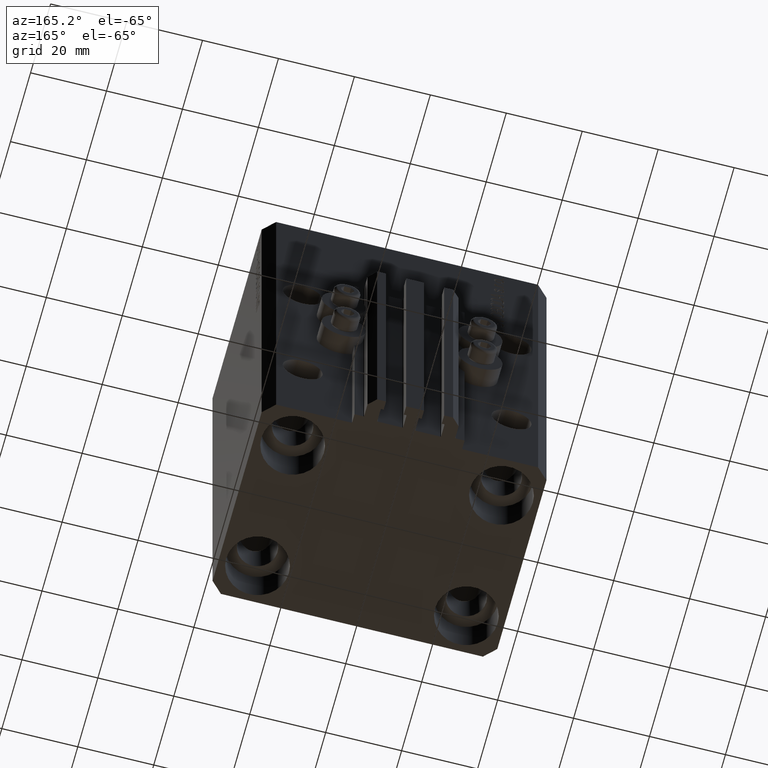
[diagram: clean part render]
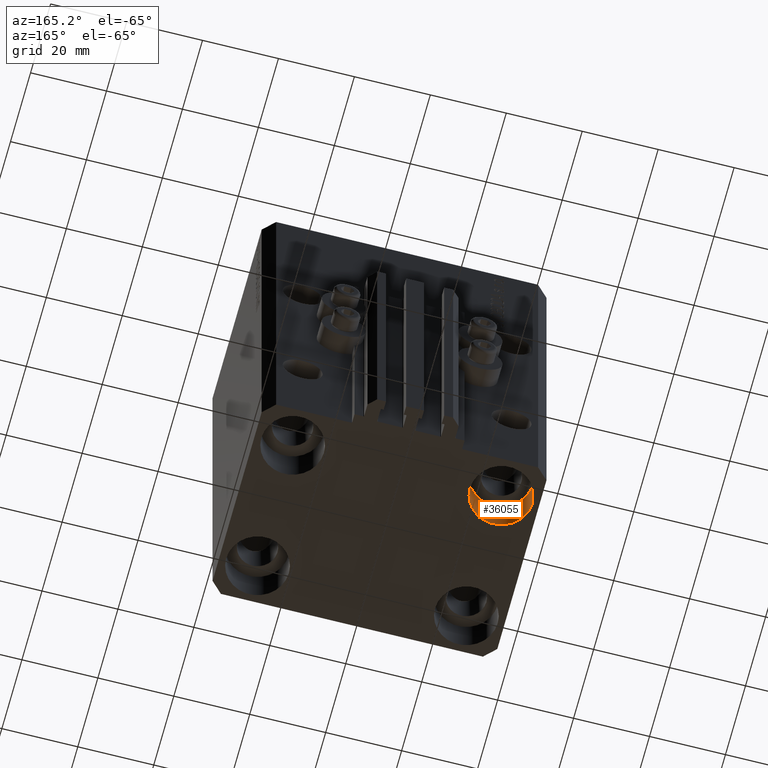
[diagram: same view with one face highlighted and labeled with its STEP entity id]
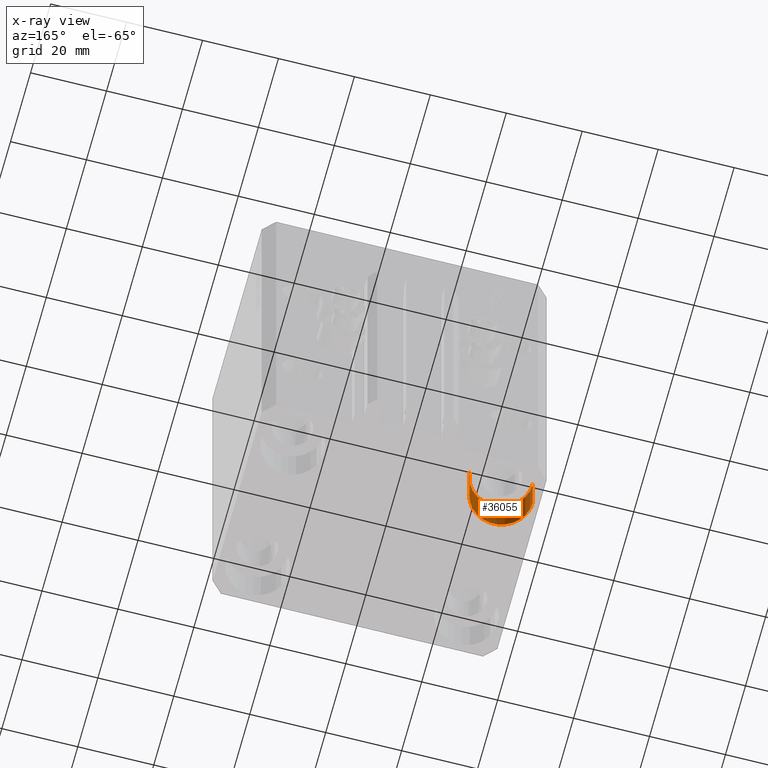
[diagram: x-ray of the same camera — body ghosted, the highlighted face saturated]
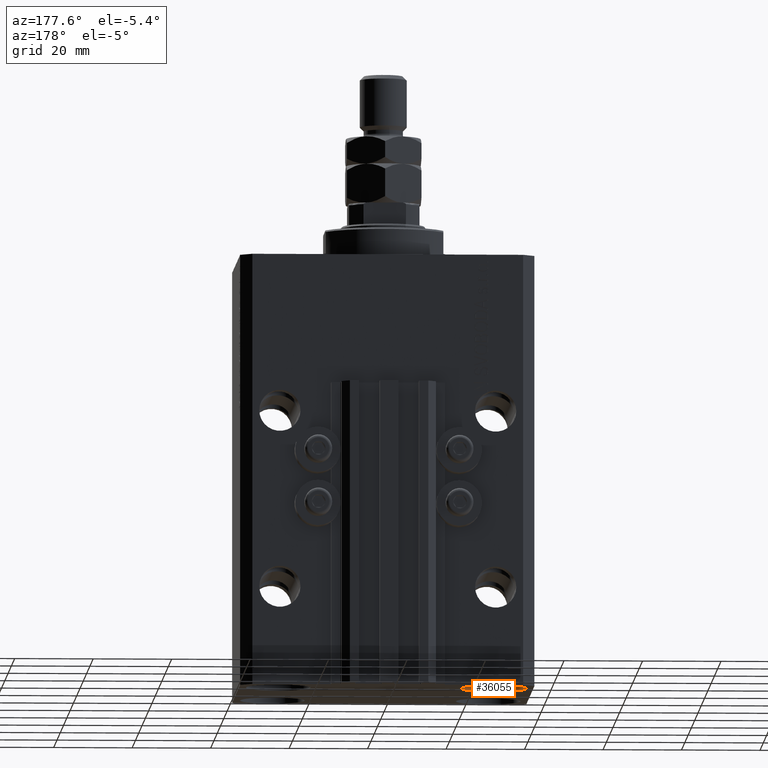
[diagram: same view with one face highlighted and labeled with its STEP entity id]
A machine part, auxiliary view. The second image highlights one B-rep face of the part: STEP entity #36055.
The next image is the same camera in x-ray: the body ghosted, the highlighted face saturated — about 0% of this face is hidden behind the body in this view.
A second angle (auxiliary view) of the same face is appended — the face is thin or edge-on in the first view.
In plain terms, the highlighted cylindrical surface (edge-blend (fillet) strip) has radius 8.25 mm, axis along (-0, -0, -1).
Its self-contained STEP definition (entity closure, byte-faithful):
#6182 = VERTEX_POINT ( 'NONE', #6506 ) ;
#6483 = VERTEX_POINT ( 'NONE', #39064 ) ;
#6506 = CARTESIAN_POINT ( 'NONE',  ( -19.25000000000000355, 17.50000000000000000, -110.0000000000000000 ) ) ;
#7831 = DIRECTION ( 'NONE',  ( -0.000000000000000000, -0.000000000000000000, -1.000000000000000000 ) ) ;
#8164 = ORIENTED_EDGE ( 'NONE', *, *, #36126, .F. ) ;
#11539 = LINE ( 'NONE', #26661, #17564 ) ;
#13343 = CARTESIAN_POINT ( 'NONE',  ( -27.50000000000000355, 17.50000000000000000, -99.00000000000000000 ) ) ;
#13840 = ORIENTED_EDGE ( 'NONE', *, *, #42518, .T. ) ;
#15141 = CARTESIAN_POINT ( 'NONE',  ( -35.75000000000000711, 17.50000000000000000, -110.0000000000000000 ) ) ;
#15368 = ORIENTED_EDGE ( 'NONE', *, *, #38942, .F. ) ;
#17564 = VECTOR ( 'NONE', #7831, 1000.000000000000000 ) ;
#18643 = VERTEX_POINT ( 'NONE', #19931 ) ;
#18818 = CYLINDRICAL_SURFACE ( 'NONE', #32239, 8.250000000000000000 ) ;
#19594 = DIRECTION ( 'NONE',  ( -0.000000000000000000, -0.000000000000000000, 1.000000000000000000 ) ) ;
#19931 = CARTESIAN_POINT ( 'NONE',  ( -19.25000000000000355, 17.50000000000000000, -99.00000000000000000 ) ) ;
#20488 = VECTOR ( 'NONE', #37774, 1000.000000000000000 ) ;
#21209 = CIRCLE ( 'NONE', #33036, 8.250000000000000000 ) ;
#22300 = FACE_OUTER_BOUND ( 'NONE', #22368, .T. ) ;
#22368 = EDGE_LOOP ( 'NONE', ( #13840, #34884, #8164, #15368 ) ) ;
#24248 = DIRECTION ( 'NONE',  ( -0.000000000000000000, -0.000000000000000000, 1.000000000000000000 ) ) ;
#26646 = EDGE_CURVE ( 'NONE', #18643, #6182, #11539, .T. ) ;
#26661 = CARTESIAN_POINT ( 'NONE',  ( -19.25000000000000355, 17.50000000000000000, -99.00000000000000000 ) ) ;
#27717 = DIRECTION ( 'NONE',  ( -1.000000000000000000, 0.000000000000000000, 0.000000000000000000 ) ) ;
#27964 = DIRECTION ( 'NONE',  ( -0.000000000000000000, -0.000000000000000000, -1.000000000000000000 ) ) ;
#31559 = CIRCLE ( 'NONE', #37855, 8.250000000000000000 ) ;
#32239 = AXIS2_PLACEMENT_3D ( 'NONE', #13343, #27964, #27717 ) ;
#33036 = AXIS2_PLACEMENT_3D ( 'NONE', #38559, #24248, #42528 ) ;
#34409 = DIRECTION ( 'NONE',  ( 1.000000000000000000, 0.000000000000000000, 0.000000000000000000 ) ) ;
#34884 = ORIENTED_EDGE ( 'NONE', *, *, #26646, .T. ) ;
#34904 = VERTEX_POINT ( 'NONE', #15141 ) ;
#36055 = ADVANCED_FACE ( 'NONE', ( #22300 ), #18818, .F. ) ;
#36126 = EDGE_CURVE ( 'NONE', #34904, #6182, #21209, .T. ) ;
#37048 = CARTESIAN_POINT ( 'NONE',  ( -35.75000000000000711, 17.50000000000000000, -99.00000000000000000 ) ) ;
#37296 = LINE ( 'NONE', #37048, #20488 ) ;
#37774 = DIRECTION ( 'NONE',  ( -0.000000000000000000, -0.000000000000000000, -1.000000000000000000 ) ) ;
#37855 = AXIS2_PLACEMENT_3D ( 'NONE', #45301, #19594, #34409 ) ;
#38559 = CARTESIAN_POINT ( 'NONE',  ( -27.50000000000000355, 17.50000000000000000, -110.0000000000000000 ) ) ;
#38942 = EDGE_CURVE ( 'NONE', #6483, #34904, #37296, .T. ) ;
#39064 = CARTESIAN_POINT ( 'NONE',  ( -35.75000000000000711, 17.50000000000000000, -99.00000000000000000 ) ) ;
#42518 = EDGE_CURVE ( 'NONE', #6483, #18643, #31559, .T. ) ;
#42528 = DIRECTION ( 'NONE',  ( 1.000000000000000000, 0.000000000000000000, 0.000000000000000000 ) ) ;
#45301 = CARTESIAN_POINT ( 'NONE',  ( -27.50000000000000355, 17.50000000000000000, -99.00000000000000000 ) ) ;